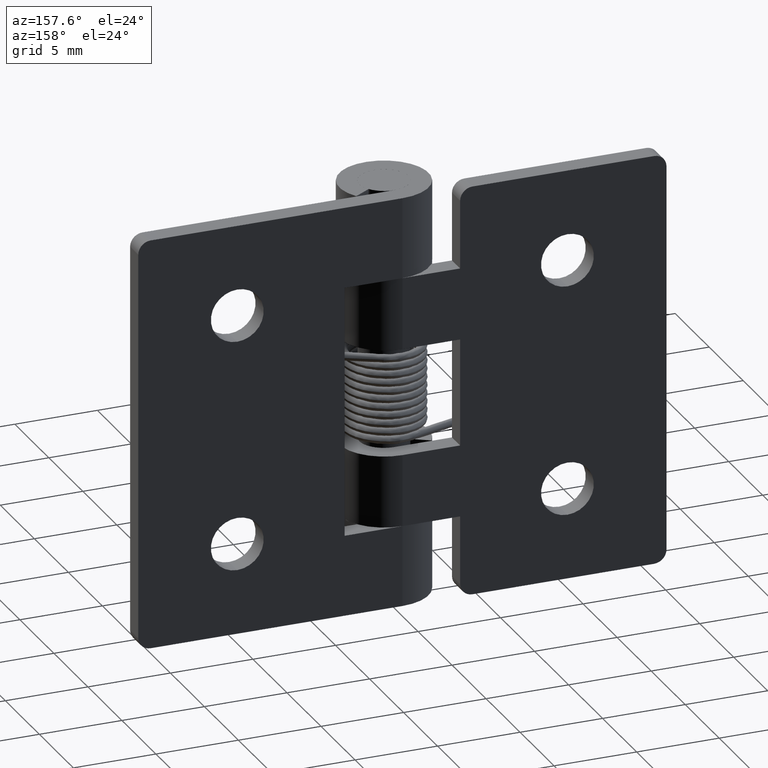
[diagram: clean part render]
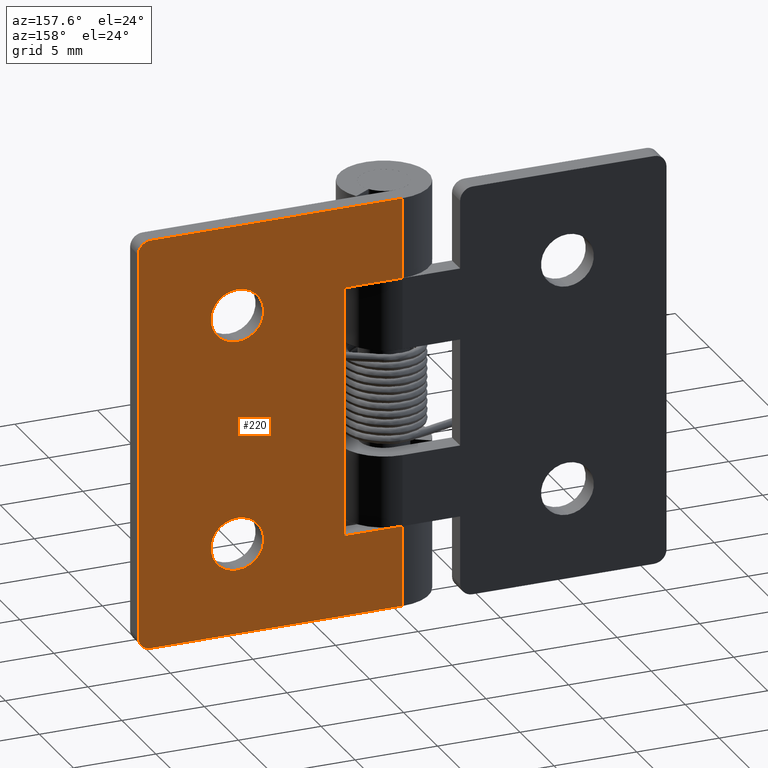
[diagram: same view with one face highlighted and labeled with its STEP entity id]
A machine part, auxiliary view. The second image highlights one B-rep face of the part: STEP entity #220.
In plain terms, the highlighted planar face has unit normal (0, 1, 0).
Its self-contained STEP definition (entity closure, byte-faithful):
#220=ADVANCED_FACE('',(#603,#604,#605),#602,.T.);
#602=PLANE('',#1143);
#603=FACE_OUTER_BOUND('',#1144,.T.);
#604=FACE_BOUND('',#1145,.T.);
#605=FACE_BOUND('',#1146,.T.);
#1140=CARTESIAN_POINT('',(-1.59999920000E+00,2.70000500000E+00,-2.49999850000E+00));
#1141=DIRECTION('',(0.00000000000E+00,1.00000000000E+00,0.00000000000E+00));
#1142=DIRECTION('',(0.00000000000E+00,0.00000000000E+00,1.00000000000E+00));
#1143=AXIS2_PLACEMENT_3D('',#1140,#1141,#1142);
#1144=EDGE_LOOP('',(#3136,#3137,#3138,#3139,#3140,#3141,#3142,#3143,#3144,#3145));
#1145=EDGE_LOOP('',(#3146,#3147));
#1146=EDGE_LOOP('',(#3148,#3149));
#3136=ORIENTED_EDGE('',*,*,#3399,.F.);
#3137=ORIENTED_EDGE('',*,*,#3382,.F.);
#3138=ORIENTED_EDGE('',*,*,#3400,.F.);
#3139=ORIENTED_EDGE('',*,*,#3378,.F.);
#3140=ORIENTED_EDGE('',*,*,#3401,.T.);
#3141=ORIENTED_EDGE('',*,*,#3402,.T.);
#3142=ORIENTED_EDGE('',*,*,#3403,.F.);
#3143=ORIENTED_EDGE('',*,*,#3385,.F.);
#3144=ORIENTED_EDGE('',*,*,#3404,.F.);
#3145=ORIENTED_EDGE('',*,*,#3405,.T.);
#3146=ORIENTED_EDGE('',*,*,#3406,.F.);
#3147=ORIENTED_EDGE('',*,*,#3407,.F.);
#3148=ORIENTED_EDGE('',*,*,#3408,.F.);
#3149=ORIENTED_EDGE('',*,*,#3409,.F.);
#3378=EDGE_CURVE('',#3998,#4005,#4006,.T.);
#3382=EDGE_CURVE('',#4026,#4033,#4034,.T.);
#3385=EDGE_CURVE('',#4046,#4054,#4055,.T.);
#3399=EDGE_CURVE('',#4033,#4148,#4149,.T.);
#3400=EDGE_CURVE('',#4005,#4026,#4155,.T.);
#3401=EDGE_CURVE('',#3998,#4161,#4162,.T.);
#3402=EDGE_CURVE('',#4161,#4168,#4169,.T.);
#3403=EDGE_CURVE('',#4054,#4168,#4175,.T.);
#3404=EDGE_CURVE('',#4181,#4046,#4182,.T.);
#3405=EDGE_CURVE('',#4181,#4148,#4188,.T.);
#3406=EDGE_CURVE('',#4194,#4195,#4196,.T.);
#3407=EDGE_CURVE('',#4195,#4194,#4202,.T.);
#3408=EDGE_CURVE('',#4208,#4209,#4210,.T.);
#3409=EDGE_CURVE('',#4209,#4208,#4216,.T.);
#3998=VERTEX_POINT('',#4926);
#4005=VERTEX_POINT('',#4930);
#4006=CIRCLE('',#4934,7.50000000000E-01);
#4026=VERTEX_POINT('',#4944);
#4033=VERTEX_POINT('',#4948);
#4034=CIRCLE('',#4952,7.50000000000E-01);
#4046=VERTEX_POINT('',#4956);
#4054=VERTEX_POINT('',#4961);
#4055=LINE('',#4962,#4963);
#4148=VERTEX_POINT('',#5017);
#4149=LINE('',#5018,#5019);
#4155=LINE('',#5021,#5022);
#4161=VERTEX_POINT('',#5024);
#4162=LINE('',#5025,#5026);
#4168=VERTEX_POINT('',#5028);
#4169=LINE('',#5029,#5030);
#4175=LINE('',#5032,#5033);
#4181=VERTEX_POINT('',#5035);
#4182=LINE('',#5036,#5037);
#4188=LINE('',#5039,#5040);
#4194=VERTEX_POINT('',#5042);
#4195=VERTEX_POINT('',#5043);
#4196=CIRCLE('',#5047,1.60000000000E+00);
#4202=CIRCLE('',#5051,1.60000000000E+00);
#4208=VERTEX_POINT('',#5052);
#4209=VERTEX_POINT('',#5053);
#4210=CIRCLE('',#5057,1.60000000000E+00);
#4216=CIRCLE('',#5061,1.60000000000E+00);
#4926=CARTESIAN_POINT('',(1.52499920000E+01,2.70000500000E+00,0.00000000000E+00));
#4930=CARTESIAN_POINT('',(1.59999920000E+01,2.70000500000E+00,7.50000000000E-01));
#4931=CARTESIAN_POINT('',(1.52499920000E+01,2.70000500000E+00,7.50000000000E-01));
#4932=DIRECTION('',(0.00000000000E+00,-1.00000000000E+00,0.00000000000E+00));
#4933=DIRECTION('',(-0.00000000000E+00,-0.00000000000E+00,-1.00000000000E+00));
#4934=AXIS2_PLACEMENT_3D('',#4931,#4932,#4933);
#4944=CARTESIAN_POINT('',(1.59999920000E+01,2.70000500000E+00,2.42499850000E+01));
#4948=CARTESIAN_POINT('',(1.52499920000E+01,2.70000500000E+00,2.49999850000E+01));
#4949=CARTESIAN_POINT('',(1.52499920000E+01,2.70000500000E+00,2.42499850000E+01));
#4950=DIRECTION('',(0.00000000000E+00,-1.00000000000E+00,0.00000000000E+00));
#4951=DIRECTION('',(-0.00000000000E+00,-0.00000000000E+00,-1.00000000000E+00));
#4952=AXIS2_PLACEMENT_3D('',#4949,#4950,#4951);
#4956=CARTESIAN_POINT('',(3.50000000000E+00,2.70000500000E+00,2.00999980000E+01));
#4961=CARTESIAN_POINT('',(3.50000000000E+00,2.70000500000E+00,4.89999400000E+00));
#4962=CARTESIAN_POINT('',(3.50000000000E+00,2.70000500000E+00,2.00999980000E+01));
#4963=VECTOR('',#4964,1.52000040000E+01);
#4964=DIRECTION('',(0.00000000000E+00,0.00000000000E+00,-1.00000000000E+00));
#5017=CARTESIAN_POINT('',(0.00000000000E+00,2.70000500000E+00,2.49999850000E+01));
#5018=CARTESIAN_POINT('',(1.52499920000E+01,2.70000500000E+00,2.49999850000E+01));
#5019=VECTOR('',#5020,1.52499920000E+01);
#5020=DIRECTION('',(-1.00000000000E+00,0.00000000000E+00,0.00000000000E+00));
#5021=CARTESIAN_POINT('',(1.59999920000E+01,2.70000500000E+00,7.50000000000E-01));
#5022=VECTOR('',#5023,2.34999850000E+01);
#5023=DIRECTION('',(0.00000000000E+00,0.00000000000E+00,1.00000000000E+00));
#5024=CARTESIAN_POINT('',(0.00000000000E+00,2.70000500000E+00,0.00000000000E+00));
#5025=CARTESIAN_POINT('',(1.52499920000E+01,2.70000500000E+00,0.00000000000E+00));
#5026=VECTOR('',#5027,1.52499920000E+01);
#5027=DIRECTION('',(-1.00000000000E+00,0.00000000000E+00,0.00000000000E+00));
#5028=CARTESIAN_POINT('',(0.00000000000E+00,2.70000500000E+00,4.89999400000E+00));
#5029=CARTESIAN_POINT('',(0.00000000000E+00,2.70000500000E+00,0.00000000000E+00));
#5030=VECTOR('',#5031,4.89999400000E+00);
#5031=DIRECTION('',(0.00000000000E+00,0.00000000000E+00,1.00000000000E+00));
#5032=CARTESIAN_POINT('',(3.50000000000E+00,2.70000500000E+00,4.89999400000E+00));
#5033=VECTOR('',#5034,3.50000000000E+00);
#5034=DIRECTION('',(-1.00000000000E+00,0.00000000000E+00,0.00000000000E+00));
#5035=CARTESIAN_POINT('',(0.00000000000E+00,2.70000500000E+00,2.00999980000E+01));
#5036=CARTESIAN_POINT('',(0.00000000000E+00,2.70000500000E+00,2.00999980000E+01));
#5037=VECTOR('',#5038,3.50000000000E+00);
#5038=DIRECTION('',(1.00000000000E+00,0.00000000000E+00,0.00000000000E+00));
#5039=CARTESIAN_POINT('',(0.00000000000E+00,2.70000500000E+00,2.00999980000E+01));
#5040=VECTOR('',#5041,4.89998700000E+00);
#5041=DIRECTION('',(0.00000000000E+00,0.00000000000E+00,1.00000000000E+00));
#5042=CARTESIAN_POINT('',(9.99999300000E+00,2.70000500000E+00,1.78999920000E+01));
#5043=CARTESIAN_POINT('',(9.99999300000E+00,2.70000500000E+00,2.10999920000E+01));
#5044=CARTESIAN_POINT('',(9.99999300000E+00,2.70000500000E+00,1.94999920000E+01));
#5045=DIRECTION('',(0.00000000000E+00,1.00000000000E+00,0.00000000000E+00));
#5046=DIRECTION('',(-1.22460635382E-16,0.00000000000E+00,1.00000000000E+00));
#5047=AXIS2_PLACEMENT_3D('',#5044,#5045,#5046);
#5048=CARTESIAN_POINT('',(9.99999300000E+00,2.70000500000E+00,1.94999920000E+01));
#5049=DIRECTION('',(0.00000000000E+00,1.00000000000E+00,0.00000000000E+00));
#5050=DIRECTION('',(-1.22460635382E-16,0.00000000000E+00,1.00000000000E+00));
#5051=AXIS2_PLACEMENT_3D('',#5048,#5049,#5050);
#5052=CARTESIAN_POINT('',(9.99999300000E+00,2.70000500000E+00,3.90000000000E+00));
#5053=CARTESIAN_POINT('',(9.99999300000E+00,2.70000500000E+00,7.10000000000E+00));
#5054=CARTESIAN_POINT('',(9.99999300000E+00,2.70000500000E+00,5.50000000000E+00));
#5055=DIRECTION('',(0.00000000000E+00,1.00000000000E+00,0.00000000000E+00));
#5056=DIRECTION('',(-1.22460635382E-16,0.00000000000E+00,1.00000000000E+00));
#5057=AXIS2_PLACEMENT_3D('',#5054,#5055,#5056);
#5058=CARTESIAN_POINT('',(9.99999300000E+00,2.70000500000E+00,5.50000000000E+00));
#5059=DIRECTION('',(0.00000000000E+00,1.00000000000E+00,0.00000000000E+00));
#5060=DIRECTION('',(-1.22460635382E-16,0.00000000000E+00,1.00000000000E+00));
#5061=AXIS2_PLACEMENT_3D('',#5058,#5059,#5060);